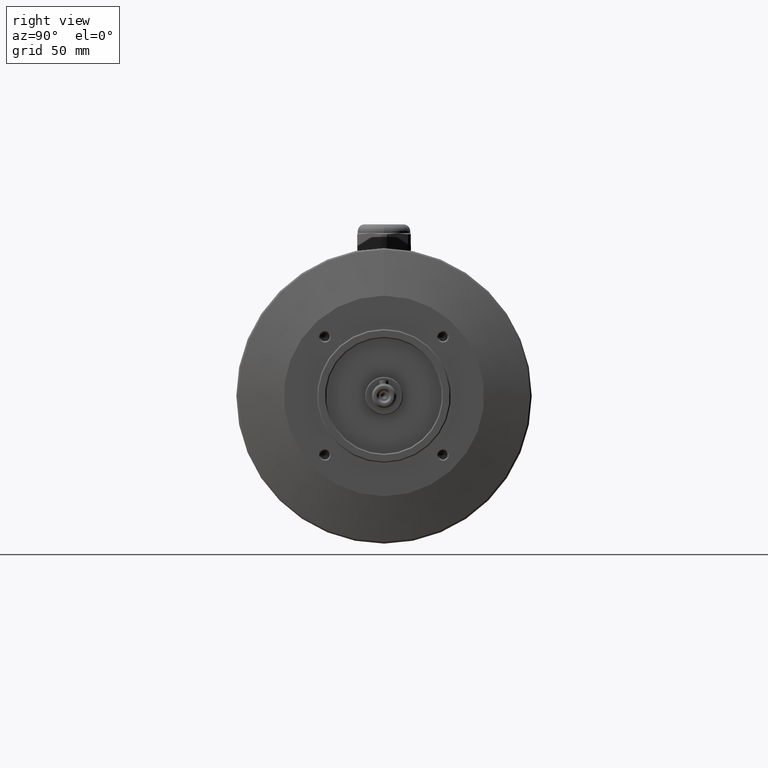
[diagram: clean part render]
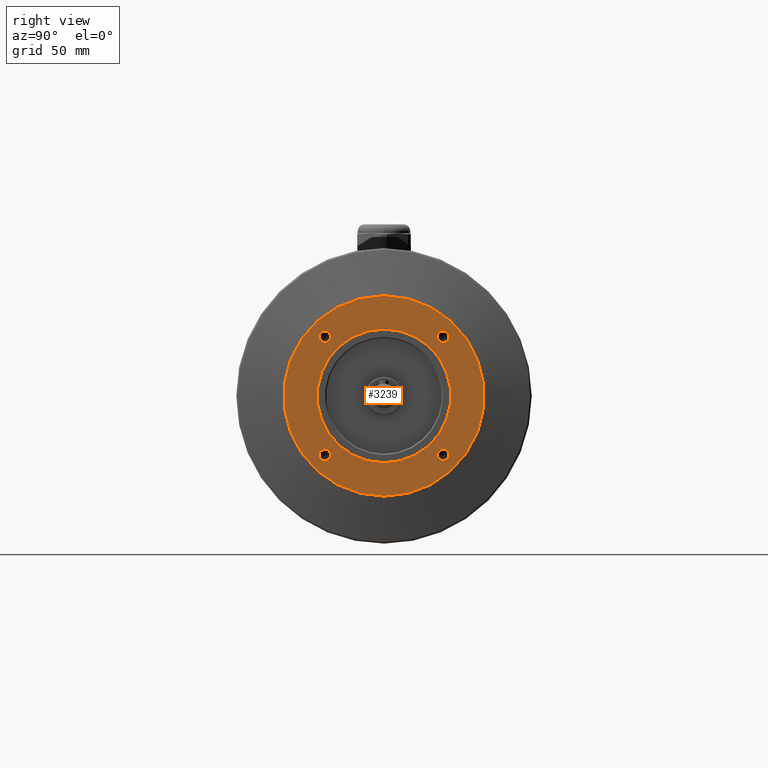
[diagram: same view with one face highlighted and labeled with its STEP entity id]
A machine part, right view. The second image highlights one B-rep face of the part: STEP entity #3239.
In plain terms, the highlighted planar face has unit normal (1, 0, 0).
Its self-contained STEP definition (entity closure, byte-faithful):
#83=PLANE('',#3445);
#506=ORIENTED_EDGE('',*,*,#1046,.T.);
#507=ORIENTED_EDGE('',*,*,#1047,.T.);
#508=ORIENTED_EDGE('',*,*,#1048,.T.);
#509=ORIENTED_EDGE('',*,*,#1049,.T.);
#510=ORIENTED_EDGE('',*,*,#1050,.T.);
#511=ORIENTED_EDGE('',*,*,#1045,.F.);
#1045=EDGE_CURVE('',#1316,#1316,#1498,.T.);
#1046=EDGE_CURVE('',#1317,#1317,#1499,.T.);
#1047=EDGE_CURVE('',#1318,#1318,#1500,.T.);
#1048=EDGE_CURVE('',#1319,#1319,#1501,.T.);
#1049=EDGE_CURVE('',#1320,#1320,#1502,.T.);
#1050=EDGE_CURVE('',#1321,#1321,#1503,.T.);
#1316=VERTEX_POINT('',#4541);
#1317=VERTEX_POINT('',#4544);
#1318=VERTEX_POINT('',#4546);
#1319=VERTEX_POINT('',#4548);
#1320=VERTEX_POINT('',#4550);
#1321=VERTEX_POINT('',#4552);
#1498=CIRCLE('',#3444,45.);
#1499=CIRCLE('',#3446,2.567);
#1500=CIRCLE('',#3447,2.567);
#1501=CIRCLE('',#3448,2.567);
#1502=CIRCLE('',#3449,2.567);
#1503=CIRCLE('',#3450,30.);
#1614=EDGE_LOOP('',(#506));
#1615=EDGE_LOOP('',(#507));
#1616=EDGE_LOOP('',(#508));
#1617=EDGE_LOOP('',(#509));
#1618=EDGE_LOOP('',(#510));
#1619=EDGE_LOOP('',(#511));
#1857=FACE_BOUND('',#1614,.T.);
#1858=FACE_BOUND('',#1615,.T.);
#1859=FACE_BOUND('',#1616,.T.);
#1860=FACE_BOUND('',#1617,.T.);
#1861=FACE_BOUND('',#1618,.T.);
#1862=FACE_BOUND('',#1619,.T.);
#3239=ADVANCED_FACE('',(#1857,#1858,#1859,#1860,#1861,#1862),#83,.T.);
#3444=AXIS2_PLACEMENT_3D('',#4540,#3820,#3821);
#3445=AXIS2_PLACEMENT_3D('',#4542,#3822,#3823);
#3446=AXIS2_PLACEMENT_3D('',#4543,#3824,#3825);
#3447=AXIS2_PLACEMENT_3D('',#4545,#3826,#3827);
#3448=AXIS2_PLACEMENT_3D('',#4547,#3828,#3829);
#3449=AXIS2_PLACEMENT_3D('',#4549,#3830,#3831);
#3450=AXIS2_PLACEMENT_3D('',#4551,#3832,#3833);
#3820=DIRECTION('',(-1.,0.,0.));
#3821=DIRECTION('',(0.,0.,1.));
#3822=DIRECTION('',(1.,0.,0.));
#3823=DIRECTION('',(0.,0.,-1.));
#3824=DIRECTION('',(-1.,0.,0.));
#3825=DIRECTION('',(0.,1.,0.));
#3826=DIRECTION('',(-1.,0.,0.));
#3827=DIRECTION('',(0.,1.,0.));
#3828=DIRECTION('',(-1.,0.,0.));
#3829=DIRECTION('',(0.,1.,0.));
#3830=DIRECTION('',(-1.,0.,0.));
#3831=DIRECTION('',(0.,1.,0.));
#3832=DIRECTION('',(-1.,0.,0.));
#3833=DIRECTION('',(0.,0.,1.));
#4540=CARTESIAN_POINT('',(-2.77555756156289E-14,0.,0.));
#4541=CARTESIAN_POINT('',(-2.77555756156289E-14,0.,45.));
#4542=CARTESIAN_POINT('',(-2.08166817117217E-14,0.,45.));
#4543=CARTESIAN_POINT('',(-2.08166817117217E-14,-26.5165042944955,-26.5165042944955));
#4544=CARTESIAN_POINT('',(-2.08166817117217E-14,-23.9495042944955,-26.5165042944955));
#4545=CARTESIAN_POINT('',(-2.08166817117217E-14,26.5165042944955,-26.5165042944955));
#4546=CARTESIAN_POINT('',(-2.08166817117217E-14,29.0835042944955,-26.5165042944955));
#4547=CARTESIAN_POINT('',(-2.08166817117217E-14,26.5165042944955,26.5165042944955));
#4548=CARTESIAN_POINT('',(-2.08166817117217E-14,29.0835042944955,26.5165042944955));
#4549=CARTESIAN_POINT('',(-2.08166817117217E-14,-26.5165042944955,26.5165042944955));
#4550=CARTESIAN_POINT('',(-2.08166817117217E-14,-23.9495042944955,26.5165042944955));
#4551=CARTESIAN_POINT('',(-2.77555756156289E-14,0.,0.));
#4552=CARTESIAN_POINT('',(-2.77555756156289E-14,0.,30.));